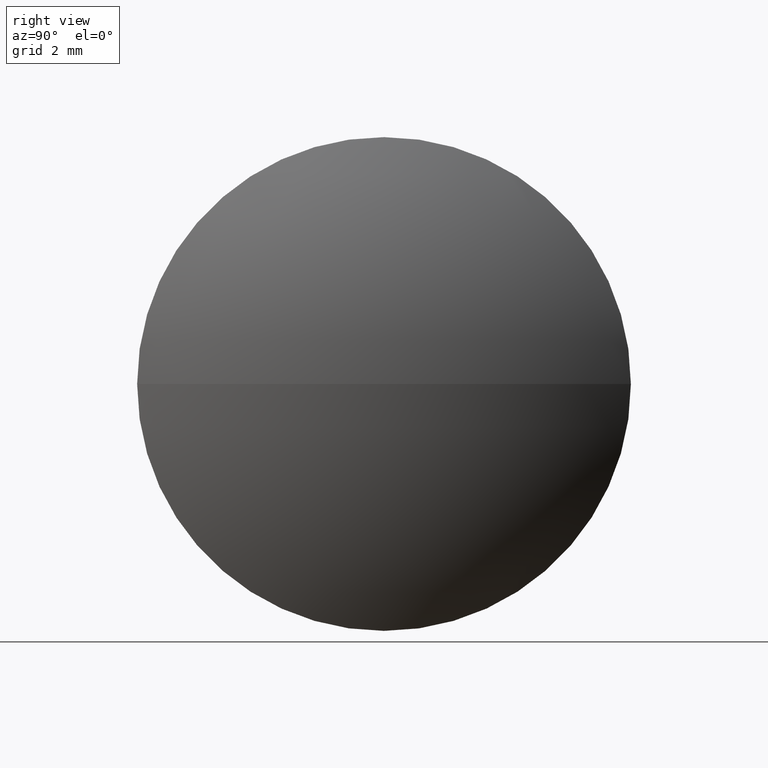
[diagram: clean part render]
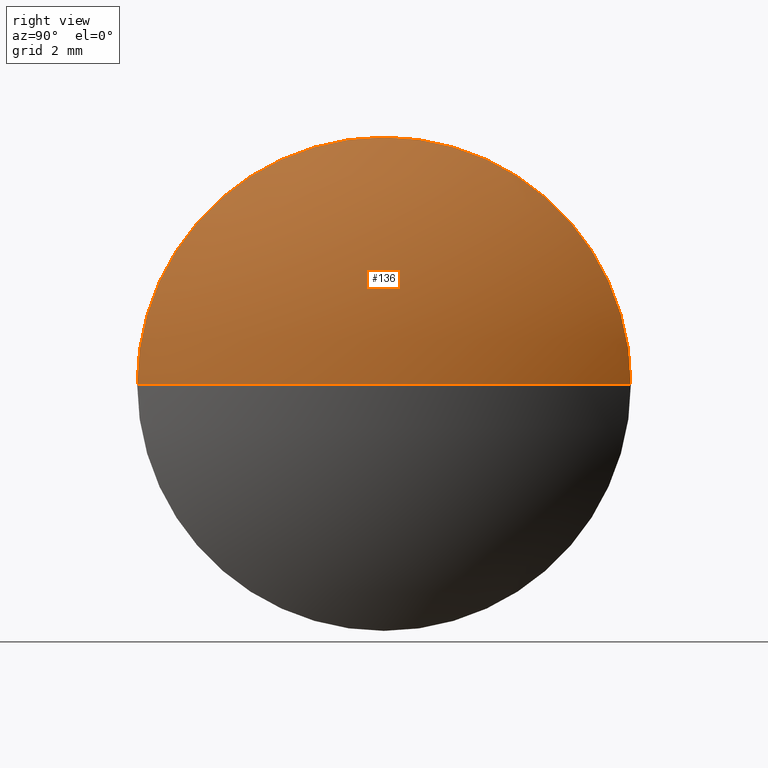
[diagram: same view with one face highlighted and labeled with its STEP entity id]
A machine part, right view. The second image highlights one B-rep face of the part: STEP entity #136.
In plain terms, the highlighted spherical surface has radius 12.101 mm.
Its self-contained STEP definition (entity closure, byte-faithful):
#3 = CARTESIAN_POINT ( 'NONE',  ( 33.92811979796815800, 24.30805651159239700, 0.0000000000000000000 ) ) ;
#6 = DIRECTION ( 'NONE',  ( 0.0000000000000000000, 0.0000000000000000000, -1.000000000000000000 ) ) ;
#24 = CIRCLE ( 'NONE', #341, 12.10096423222025500 ) ;
#26 = AXIS2_PLACEMENT_3D ( 'NONE', #202, #196, #198 ) ;
#34 = CARTESIAN_POINT ( 'NONE',  ( 44.22913117304555200, 30.65805651159239500, 7.776507174585689200E-016 ) ) ;
#36 = VERTEX_POINT ( 'NONE', #34 ) ;
#54 = EDGE_CURVE ( 'NONE', #133, #104, #180, .T. ) ;
#64 = DIRECTION ( 'NONE',  ( -1.000000000000000000, -0.0000000000000000000, -0.0000000000000000000 ) ) ;
#68 = ORIENTED_EDGE ( 'NONE', *, *, #192, .F. ) ;
#86 = CIRCLE ( 'NONE', #161, 12.10096423222025500 ) ;
#103 = CIRCLE ( 'NONE', #186, 6.349999999999997900 ) ;
#104 = VERTEX_POINT ( 'NONE', #329 ) ;
#106 = EDGE_CURVE ( 'NONE', #327, #133, #86, .T. ) ;
#108 = DIRECTION ( 'NONE',  ( -1.000000000000000000, 0.0000000000000000000, 0.0000000000000000000 ) ) ;
#110 = CARTESIAN_POINT ( 'NONE',  ( 44.22913117304555200, 24.30805651159239000, 0.0000000000000000000 ) ) ;
#125 = EDGE_CURVE ( 'NONE', #327, #36, #24, .T. ) ;
#132 = AXIS2_PLACEMENT_3D ( 'NONE', #322, #253, #250 ) ;
#133 = VERTEX_POINT ( 'NONE', #137 ) ;
#136 = ADVANCED_FACE ( 'NONE', ( #163 ), #242, .T. ) ;
#137 = CARTESIAN_POINT ( 'NONE',  ( 44.22913117304555200, 17.95805651159239200, 0.0000000000000000000 ) ) ;
#158 = ORIENTED_EDGE ( 'NONE', *, *, #54, .F. ) ;
#161 = AXIS2_PLACEMENT_3D ( 'NONE', #3, #6, #108 ) ;
#163 = FACE_OUTER_BOUND ( 'NONE', #264, .T. ) ;
#167 = DIRECTION ( 'NONE',  ( 0.0000000000000000000, -1.224646799147353200E-016, 1.000000000000000000 ) ) ;
#180 = CIRCLE ( 'NONE', #26, 6.349999999999997900 ) ;
#186 = AXIS2_PLACEMENT_3D ( 'NONE', #110, #64, #270 ) ;
#188 = ORIENTED_EDGE ( 'NONE', *, *, #106, .F. ) ;
#192 = EDGE_CURVE ( 'NONE', #104, #36, #103, .T. ) ;
#194 = DIRECTION ( 'NONE',  ( 0.0000000000000000000, -1.000000000000000000, -1.224646799147353200E-016 ) ) ;
#196 = DIRECTION ( 'NONE',  ( -1.000000000000000000, -0.0000000000000000000, -0.0000000000000000000 ) ) ;
#198 = DIRECTION ( 'NONE',  ( 0.0000000000000000000, 0.0000000000000000000, 1.000000000000000000 ) ) ;
#202 = CARTESIAN_POINT ( 'NONE',  ( 44.22913117304555200, 24.30805651159239000, 0.0000000000000000000 ) ) ;
#238 = ORIENTED_EDGE ( 'NONE', *, *, #125, .T. ) ;
#242 = SPHERICAL_SURFACE ( 'NONE', #132, 12.10096423222025500 ) ;
#250 = DIRECTION ( 'NONE',  ( 0.0000000000000000000, -1.000000000000000000, 0.0000000000000000000 ) ) ;
#253 = DIRECTION ( 'NONE',  ( 0.0000000000000000000, 0.0000000000000000000, 1.000000000000000000 ) ) ;
#264 = EDGE_LOOP ( 'NONE', ( #188, #238, #68, #158 ) ) ;
#270 = DIRECTION ( 'NONE',  ( 0.0000000000000000000, 0.0000000000000000000, 1.000000000000000000 ) ) ;
#273 = CARTESIAN_POINT ( 'NONE',  ( 33.92811979796815800, 24.30805651159239700, 0.0000000000000000000 ) ) ;
#322 = CARTESIAN_POINT ( 'NONE',  ( 33.92811979796815800, 24.30805651159239700, 0.0000000000000000000 ) ) ;
#327 = VERTEX_POINT ( 'NONE', #330 ) ;
#329 = CARTESIAN_POINT ( 'NONE',  ( 44.22913117304555200, 24.30805651159239000, 6.349999999999997900 ) ) ;
#330 = CARTESIAN_POINT ( 'NONE',  ( 46.02908403018841500, 24.30805651159239700, 0.0000000000000000000 ) ) ;
#341 = AXIS2_PLACEMENT_3D ( 'NONE', #273, #167, #194 ) ;